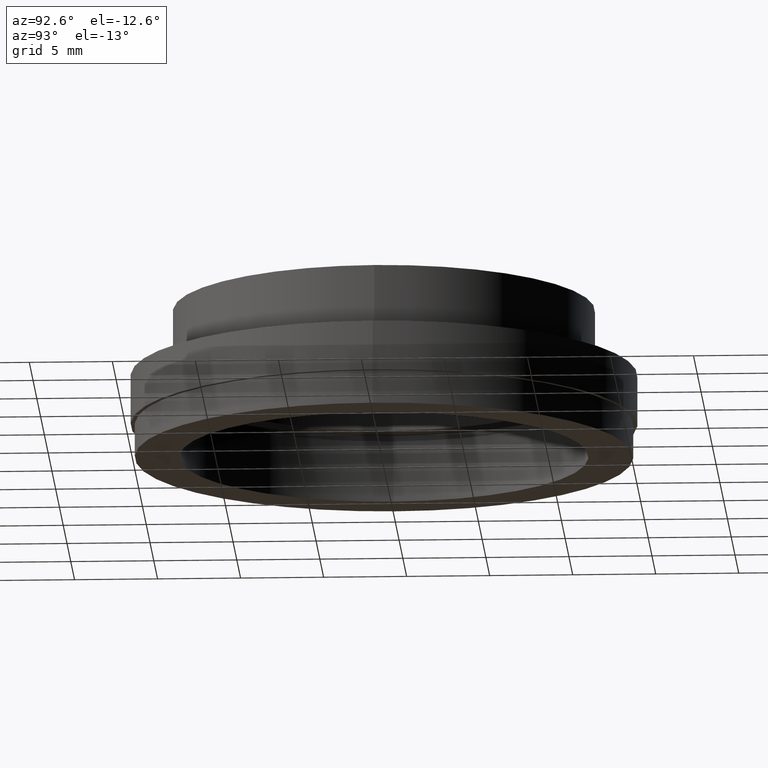
[diagram: clean part render]
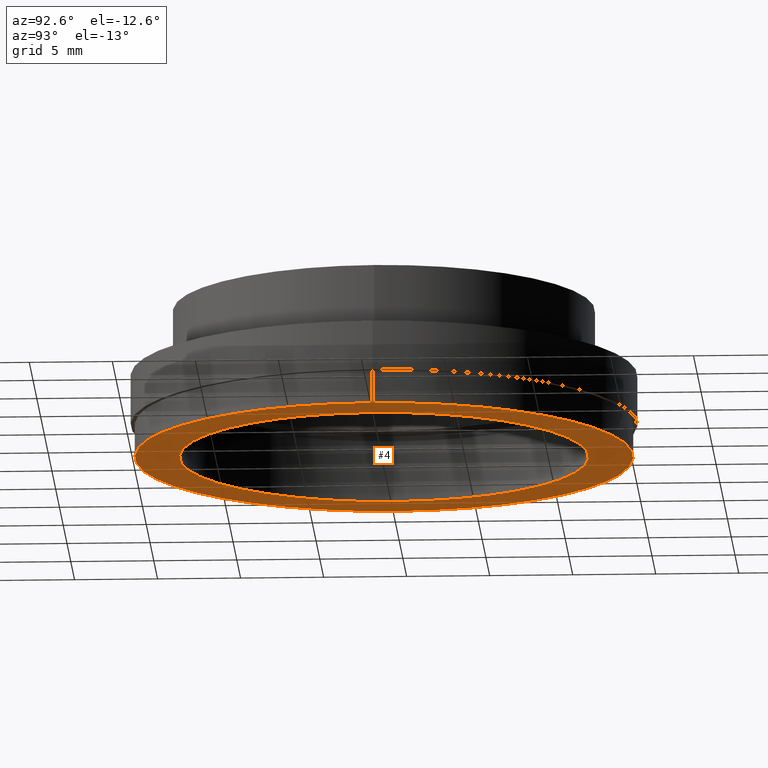
[diagram: same view with one face highlighted and labeled with its STEP entity id]
A machine part, auxiliary view. The second image highlights one B-rep face of the part: STEP entity #4.
In plain terms, the highlighted planar face has unit normal (0, -0, 1).
Its self-contained STEP definition (entity closure, byte-faithful):
#4 = ADVANCED_FACE ( 'NONE', ( #790, #615 ), #26, .F. ) ;
#8 = DIRECTION ( 'NONE',  ( -0.0000000000000000000, -0.0000000000000000000, 1.000000000000000000 ) ) ;
#12 = DIRECTION ( 'NONE',  ( -0.0000000000000000000, -0.0000000000000000000, 1.000000000000000000 ) ) ;
#26 = PLANE ( 'NONE',  #532 ) ;
#29 = DIRECTION ( 'NONE',  ( 1.000000000000000000, 0.0000000000000000000, 0.0000000000000000000 ) ) ;
#47 = ORIENTED_EDGE ( 'NONE', *, *, #77, .F. ) ;
#55 = CARTESIAN_POINT ( 'NONE',  ( 0.0000000000000000000, 0.0000000000000000000, -9.000000000000007100 ) ) ;
#75 = ORIENTED_EDGE ( 'NONE', *, *, #471, .T. ) ;
#77 = EDGE_CURVE ( 'NONE', #542, #556, #561, .T. ) ;
#80 = CARTESIAN_POINT ( 'NONE',  ( 0.0000000000000000000, 0.0000000000000000000, -9.000000000000007100 ) ) ;
#118 = DIRECTION ( 'NONE',  ( 1.000000000000000000, 0.0000000000000000000, 0.0000000000000000000 ) ) ;
#127 = ORIENTED_EDGE ( 'NONE', *, *, #461, .F. ) ;
#155 = DIRECTION ( 'NONE',  ( 0.0000000000000000000, -0.0000000000000000000, 1.000000000000000000 ) ) ;
#160 = DIRECTION ( 'NONE',  ( 1.000000000000000000, 0.0000000000000000000, 0.0000000000000000000 ) ) ;
#204 = EDGE_CURVE ( 'NONE', #271, #724, #400, .T. ) ;
#212 = ORIENTED_EDGE ( 'NONE', *, *, #204, .T. ) ;
#257 = AXIS2_PLACEMENT_3D ( 'NONE', #468, #8, #405 ) ;
#271 = VERTEX_POINT ( 'NONE', #519 ) ;
#392 = EDGE_LOOP ( 'NONE', ( #212, #75 ) ) ;
#398 = CARTESIAN_POINT ( 'NONE',  ( 15.00000000000000000, 0.0000000000000000000, -9.000000000000007100 ) ) ;
#400 = CIRCLE ( 'NONE', #700, 12.30299999999999900 ) ;
#405 = DIRECTION ( 'NONE',  ( 1.000000000000000000, 0.0000000000000000000, 0.0000000000000000000 ) ) ;
#409 = DIRECTION ( 'NONE',  ( 1.000000000000000000, 0.0000000000000000000, 0.0000000000000000000 ) ) ;
#425 = CARTESIAN_POINT ( 'NONE',  ( 0.0000000000000000000, 15.00000000000000000, -9.000000000000000000 ) ) ;
#454 = CIRCLE ( 'NONE', #856, 15.00000000000000000 ) ;
#461 = EDGE_CURVE ( 'NONE', #556, #542, #454, .T. ) ;
#468 = CARTESIAN_POINT ( 'NONE',  ( 0.0000000000000000000, 0.0000000000000000000, -9.000000000000007100 ) ) ;
#471 = EDGE_CURVE ( 'NONE', #724, #271, #712, .T. ) ;
#491 = DIRECTION ( 'NONE',  ( -0.0000000000000000000, -0.0000000000000000000, 1.000000000000000000 ) ) ;
#515 = DIRECTION ( 'NONE',  ( -0.0000000000000000000, -0.0000000000000000000, 1.000000000000000000 ) ) ;
#519 = CARTESIAN_POINT ( 'NONE',  ( 12.30299999999999900, 0.0000000000000000000, -9.000000000000007100 ) ) ;
#532 = AXIS2_PLACEMENT_3D ( 'NONE', #425, #155, #160 ) ;
#542 = VERTEX_POINT ( 'NONE', #792 ) ;
#556 = VERTEX_POINT ( 'NONE', #398 ) ;
#561 = CIRCLE ( 'NONE', #799, 15.00000000000000000 ) ;
#568 = EDGE_LOOP ( 'NONE', ( #127, #47 ) ) ;
#607 = CARTESIAN_POINT ( 'NONE',  ( -12.30299999999999900, 1.506682956990988600E-015, -9.000000000000007100 ) ) ;
#615 = FACE_BOUND ( 'NONE', #392, .T. ) ;
#700 = AXIS2_PLACEMENT_3D ( 'NONE', #55, #515, #118 ) ;
#712 = CIRCLE ( 'NONE', #257, 12.30299999999999900 ) ;
#724 = VERTEX_POINT ( 'NONE', #607 ) ;
#745 = CARTESIAN_POINT ( 'NONE',  ( 0.0000000000000000000, 0.0000000000000000000, -9.000000000000007100 ) ) ;
#790 = FACE_OUTER_BOUND ( 'NONE', #568, .T. ) ;
#792 = CARTESIAN_POINT ( 'NONE',  ( -15.00000000000000000, 1.836970198721029600E-015, -9.000000000000007100 ) ) ;
#799 = AXIS2_PLACEMENT_3D ( 'NONE', #745, #491, #29 ) ;
#856 = AXIS2_PLACEMENT_3D ( 'NONE', #80, #12, #409 ) ;